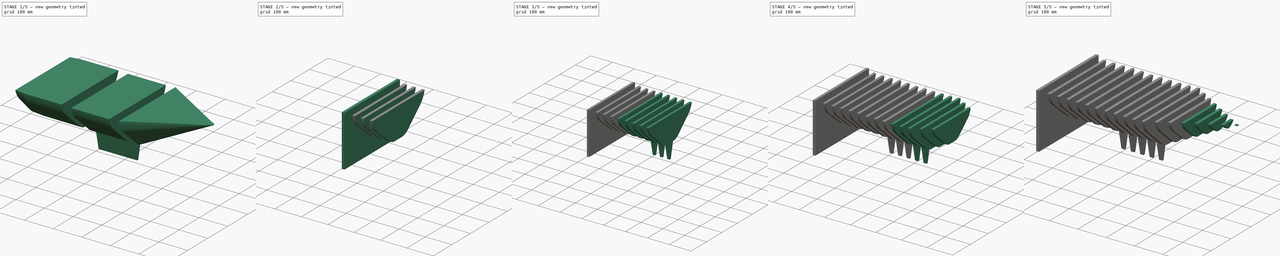
[diagram: build sequence overview — one tinted view per stage of 5, left to right]
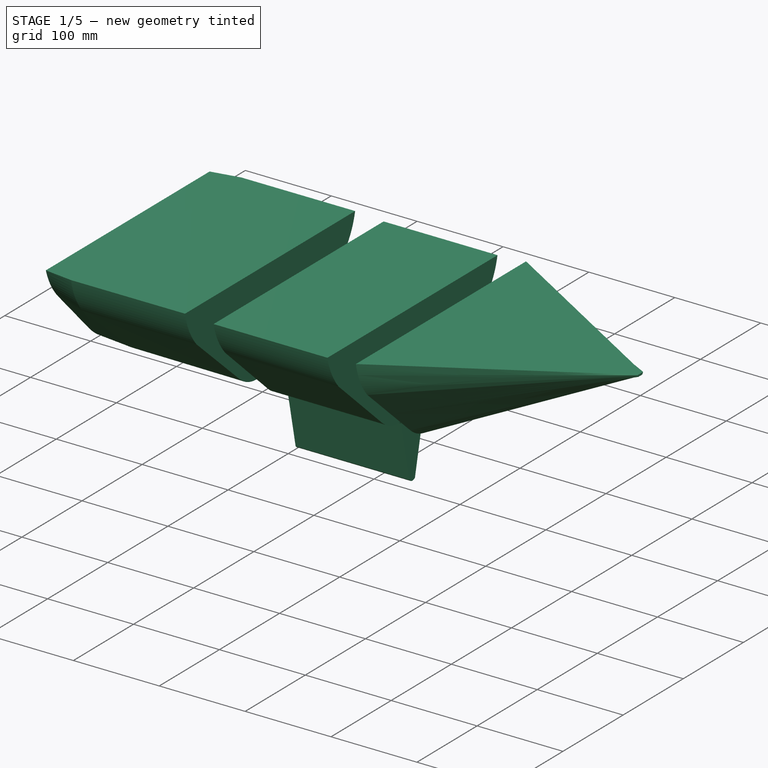
[diagram: stage 1 of 5 — iso view after this stage's code; geometry added in this stage tinted green]
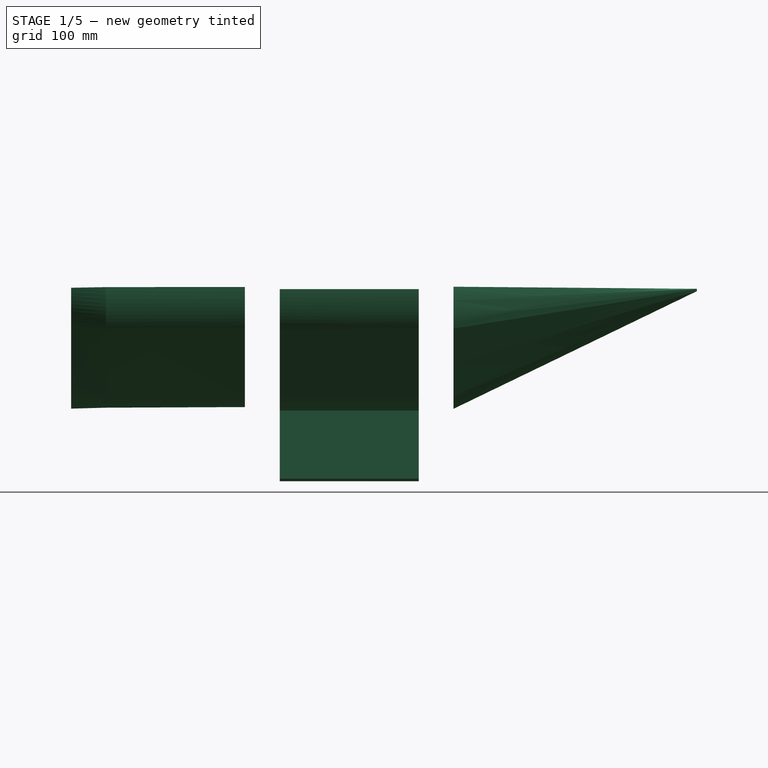
[diagram: stage 1 of 5 — front view after this stage's code; geometry added in this stage tinted green]
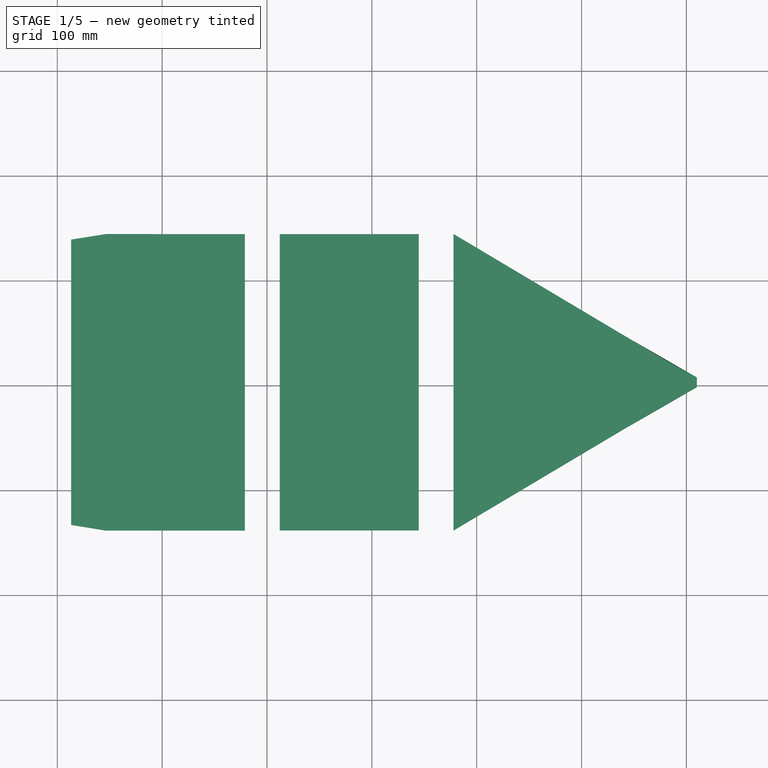
[diagram: stage 1 of 5 — top view after this stage's code; geometry added in this stage tinted green]
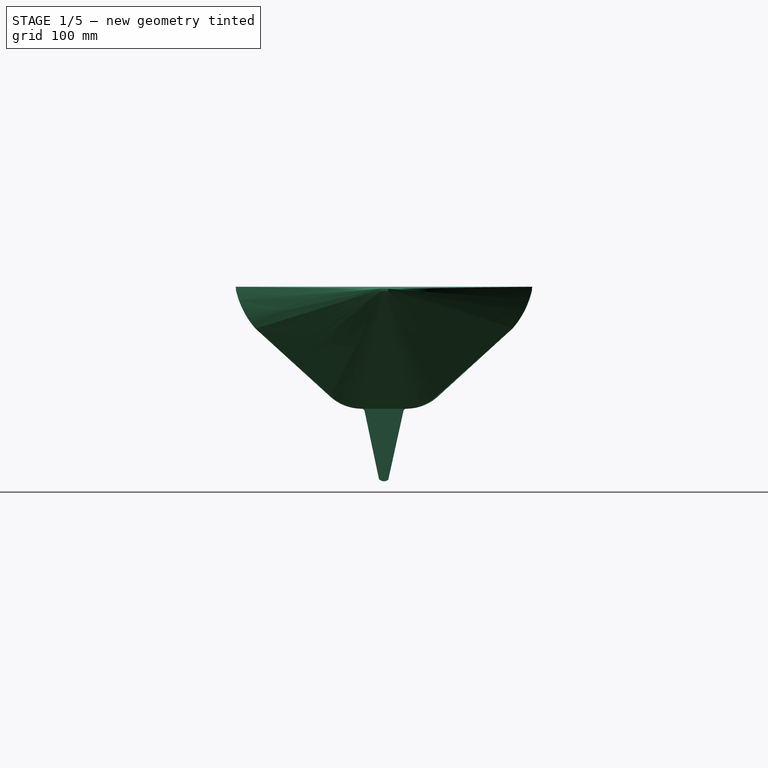
[diagram: stage 1 of 5 — right view after this stage's code; geometry added in this stage tinted green]
FCSTD DOCUMENT  (FreeCAD 0.19R24366 (Git))
Label: hulltest5
License: All rights reserved
LicenseURL: http://en.wikipedia.org/wiki/All_rights_reserved
objects: Part::FeaturePython×42, Part::Extrusion×21, Sketcher::SketchObject×9, Part::Offset2D×7, Part::Loft×4, App::DocumentObjectGroup×2, PartDesign::Pad×1, PartDesign::Body×1
note: 86 computed .brp shape members not serialized (recipe doc carries the construction recipe); baked Part::Feature solids carry a one-line shape summary decoded from their .brp

FEATURE [Sketcher::SketchObject] Sketch001  label="HullOutline"
  FullyConstrained = false
  Placement = pos=(0,0,0) rot=(0.980944,0.137386,0.137386;1.59004rad)
  sketch-geometry (9):
    g0: LineSegment StartX=0 StartY=4e-16 StartZ=0 EndX=160 EndY=3 EndZ=0
    g1: LineSegment StartX=0 StartY=4e-16 StartZ=0 EndX=-20 EndY=70 EndZ=0
    g2: LineSegment StartX=-20 StartY=70 StartZ=0 EndX=-170 EndY=70 EndZ=0
    g3: LineSegment StartX=-170 StartY=70 StartZ=0 EndX=-190 EndY=194.294 EndZ=0
    g4: LineSegment StartX=-190 StartY=194.294 StartZ=0 EndX=420 EndY=194.294 EndZ=0
    g5: LineSegment StartX=420 StartY=194.294 StartZ=0 EndX=180 EndY=70 EndZ=0
    g6: LineSegment StartX=180 StartY=70 StartZ=0 EndX=160 EndY=3 EndZ=0
    g7: LineSegment StartX=-20 StartY=70 StartZ=0 EndX=180 EndY=70 EndZ=0
    g8: GeomPoint X=0 Y=194.294 Z=0
  constraints (23):
    c: Coincident(g1,g0)
    c: Horizontal(g2)
    c: Coincident(g3,g2)
    c: Horizontal(g4)
    c: Coincident(g6,g5)
    c: Coincident(g6,g0)
    c: DistanceX(g4,g4) = 610
    c: Coincident(g3,g4)
    c: DistanceX(g3,g2) = 20
    c: DistanceX(g2,g1) = 150
    c: Coincident(g2,g1)
    c: DistanceY(g0,g1) = 70
    c: DistanceX(g0,g0) = 160
    c: DistanceX(g1,g0) = 20
    c: DistanceY(g0,g0) = 3
    c: Horizontal(g1,g5)
    c: DistanceX(g0,g5) = 20
    c: Coincident(g5,g4)
    c: Coincident(g-1,g0)
    c: Coincident(g7,g1)
    c: Coincident(g7,g5)
    c: PointOnObject(g8,g4)
    c: PointOnObject(g8,g-2)
FEATURE [Sketcher::SketchObject] Sketch
  AttachmentOffset = pos=(0,0,-220) rot=(0,0,1;0rad)
  ExternalGeometry = -> [Sketch001]
  FullyConstrained = true
  MapMode = 5
  Placement = pos=(-220,4.88e-14,-4.88e-14) rot=(0.57735,0.57735,0.57735;2.0944rad)
  Support = -> [YZ_Plane]
  sketch-geometry (4):
    g0: LineSegment StartX=-150 StartY=194.294 StartZ=0 EndX=150 EndY=194.294 EndZ=0
    g1: LineSegment StartX=150 StartY=194.294 StartZ=0 EndX=150 EndY=0 EndZ=0
    g2: LineSegment StartX=150 StartY=0 StartZ=0 EndX=-150 EndY=0 EndZ=0
    g3: LineSegment StartX=-150 StartY=0 StartZ=0 EndX=-150 EndY=194.294 EndZ=0
  constraints (12):
    c: Coincident(g0,g1)
    c: Coincident(g1,g2)
    c: Coincident(g2,g3)
    c: Coincident(g3,g0)
    c: Horizontal(g0)
    c: Horizontal(g2)
    c: Vertical(g1)
    c: Vertical(g3)
    c: Horizontal(g0,g-3)
    c: DistanceX(g0,g0) = 300
    c: DistanceX(g2,g-1) = 150
    c: Horizontal(g2,g-1)
FEATURE [PartDesign::Pad] Pad  label="BoatCoverageExtrude"
  Direction = (1,1,1)
  Length = 630
  Length2 = 100
  Placement = pos=(0,0,0) rot=(0.57735,0.57735,0.57735;2.0944rad)
  Profile = -> Sketch
  Type = 0
FEATURE [PartDesign::Body] Body
  Group = -> [Sketch,Sketch001,Pad]
  Origin = -> Origin
  Tip = -> Pad
FEATURE [Part::FeaturePython] IsoCurve  # WARN: FeaturePython — macro-defined, semantics opaque (R4)
  Face = -> Pad [Face4]
  Mode = 1
  NumberU = 0
  NumberV = 20
  Orientation = 0
  Parameter = 0
  Placement = pos=(0,0,0) rot=(0.57735,0.57735,0.57735;2.0944rad)
FEATURE [Part::Extrusion] Extrude001  label="CuttingExtrude"
  Base = -> IsoCurve
  Dir = (4e-16,1,-3e-16)
  DirMode = 2
  FaceMakerClass = Part::FaceMakerBullseye
  LengthFwd = 300
  LengthRev = 0
  Solid = false
  Symmetric = false
FEATURE [Sketcher::SketchObject] Sketch003  label="1_Back"
  FullyConstrained = false
  MapMode = 5
  Placement = pos=(-186.842,8.07e-14,-8.3e-14) rot=(0.57735,0.57735,0.57735;2.0944rad)
  Support = -> [Extrude001]
  sketch-geometry (10):
    g0: LineSegment StartX=66.5095 StartY=98.0101 StartZ=0 EndX=118.159 EndY=151.003 EndZ=0
    g1: ArcOfCircle CenterX=57.9456 CenterY=209.691 CenterZ=0 NormalX=0 NormalY=0 NormalZ=1 AngleXU=0 Radius=84.0828 StartAngle=5.51062 EndAngle=6.06309
    g2: LineSegment StartX=140 StartY=191.333 StartZ=0 EndX=0 EndY=191.333 EndZ=0
    g3: ArcOfCircle CenterX=0.209863 CenterY=162.629 CenterZ=0 NormalX=0 NormalY=0 NormalZ=1 AngleXU=0 Radius=92.5812 StartAngle=4.71239 EndAngle=5.51062
    g4: LineSegment StartX=0.209863 StartY=70.048 StartZ=0 EndX=0 EndY=70.048 EndZ=0
    g5: LineSegment StartX=-66.7966 StartY=98.3059 StartZ=0 EndX=-117.703 EndY=151.003 EndZ=0
    g6: ArcOfCircle CenterX=-53.9728 CenterY=212.567 CenterZ=0 NormalX=0 NormalY=0 NormalZ=1 AngleXU=0 Radius=88.6089 StartAngle=3.38358 EndAngle=3.9097
    g7: LineSegment StartX=-140 StartY=191.333 StartZ=0 EndX=0 EndY=191.333 EndZ=0
    g8: ArcOfCircle CenterX=-0.209863 CenterY=162.629 CenterZ=0 NormalX=0 NormalY=0 NormalZ=1 AngleXU=0 Radius=92.5812 StartAngle=3.9097 EndAngle=4.71239
    g9: LineSegment StartX=-0.209863 StartY=70.048 StartZ=0 EndX=0 EndY=70.048 EndZ=0
  constraints (21):
    c: Coincident(g2,g1)
    c: Horizontal(g2)
    c: Tangent(g3,g0) = -1.5708
    c: Horizontal(g4)
    c: Tangent(g4,g3) = 1.5708
    c: Coincident(g7,g6)
    c: PointOnObject(g7,g-2)
    c: Horizontal(g7)
    c: DistanceX(g7,g7) = 140
    c: Tangent(g8,g5) = 1.5708
    c: PointOnObject(g9,g-2)
    c: Horizontal(g9)
    c: Tangent(g9,g8) = -1.5708
    c: DistanceX(g2,g2) = 140
    c: Coincident(g9,g4)
    c: Coincident(g2,g7)
    c: Tangent(g6,g5) = 1.5708
    c: Tangent(g1,g0) = -1.5708
    c: Horizontal(g0,g5)
    c: Equal(g4,g9)
    c: Horizontal(g8,g3)
FEATURE [Sketcher::SketchObject] Sketch004  label="4_BackKeel"
  FullyConstrained = false
  MapMode = 5
  Placement = pos=(12.1053,-5.2e-15,5.4e-15) rot=(0.57735,0.57735,0.57735;2.0944rad)
  Support = -> [Extrude001]
  sketch-geometry (11):
    g0: LineSegment StartX=53.3739 StartY=82.3397 StartZ=0 EndX=124.907 EndY=147.492 EndZ=0
    g1: ArcOfCircle CenterX=59.5795 CenterY=204.375 CenterZ=0 NormalX=0 NormalY=0 NormalZ=1 AngleXU=0 Radius=86.6215 StartAngle=5.56677 EndAngle=6.11647
    g2: LineSegment StartX=145 StartY=190 StartZ=0 EndX=0 EndY=190 EndZ=0
    g3: ArcOfCircle CenterX=21.5004 CenterY=117.335 CenterZ=0 NormalX=0 NormalY=0 NormalZ=1 AngleXU=0 Radius=47.3348 StartAngle=4.71125 EndAngle=5.45114
    g4: LineSegment StartX=-53.2196 StartY=82.4014 StartZ=0 EndX=-123.484 EndY=146.649 EndZ=0
    g5: ArcOfCircle CenterX=-60.6804 CenterY=204.834 CenterZ=0 NormalX=0 NormalY=0 NormalZ=1 AngleXU=0 Radius=85.6144 StartAngle=3.31574 EndAngle=3.88884
    g6: LineSegment StartX=-145 StartY=190 StartZ=0 EndX=0 EndY=190 EndZ=0
    g7: ArcOfCircle CenterX=-21.2781 CenterY=117.335 CenterZ=0 NormalX=0 NormalY=0 NormalZ=1 AngleXU=0 Radius=47.3348 StartAngle=3.9717 EndAngle=4.7089
    g8: ArcOfCircle CenterX=0 CenterY=9.97374 CenterZ=0 NormalX=0 NormalY=0 NormalZ=1 AngleXU=0 Radius=9.1531 StartAngle=3.72605 EndAngle=5.55542
    g9: LineSegment StartX=-21.4432 StartY=70 StartZ=0 EndX=-7.6338 EndY=4.92355 EndZ=0
    g10: LineSegment StartX=6.83427 StartY=3.88506 StartZ=0 EndX=21.4466 EndY=70 EndZ=0
  constraints (21):
    c: Coincident(g1,g0)
    c: Coincident(g2,g1)
    c: Horizontal(g2)
    c: Tangent(g3,g0) = -1.5708
    c: Coincident(g5,g4)
    c: Coincident(g6,g5)
    c: PointOnObject(g6,g-2)
    c: Horizontal(g6)
    c: DistanceX(g6,g6) = 145
    c: Tangent(g7,g4) = 1.5708
    c: DistanceX(g2,g2) = 145
    c: DistanceY(g7,g2) = 120
    c: Horizontal(g3,g7)
    c: DistanceY(g-1,g7) = 70
    c: PointOnObject(g8,g-2)
    c: Coincident(g9,g7)
    c: Coincident(g9,g8)
    c: Coincident(g10,g8)
    c: Coincident(g10,g3)
    c: Coincident(g6,g2)
    c: Equal(g3,g7)
FEATURE [Sketcher::SketchObject] Sketch006  label="7_Front"
  FullyConstrained = false
  MapMode = 5
  Placement = pos=(410,-1.77e-13,1.821e-13) rot=(0.57735,0.57735,0.57735;2.0944rad)
  Support = -> [Extrude001]
  sketch-geometry (8):
    g0: LineSegment StartX=6.00585 StartY=183.663 StartZ=0 EndX=10 EndY=190.33 EndZ=0
    g1: LineSegment StartX=10 StartY=190.33 StartZ=0 EndX=0 EndY=190.33 EndZ=0
    g2: ArcOfCircle CenterX=3.21499 CenterY=185.335 CenterZ=0 NormalX=0 NormalY=0 NormalZ=1 AngleXU=0 Radius=3.25339 StartAngle=4.71239 EndAngle=5.74342
    g3: LineSegment StartX=3.21499 StartY=182.081 StartZ=0 EndX=0 EndY=182.081 EndZ=0
    g4: LineSegment StartX=-6.00585 StartY=183.663 StartZ=0 EndX=-10 EndY=190.33 EndZ=0
    g5: LineSegment StartX=-10 StartY=190.33 StartZ=0 EndX=0 EndY=190.33 EndZ=0
    g6: ArcOfCircle CenterX=-3.21499 CenterY=185.335 CenterZ=0 NormalX=0 NormalY=0 NormalZ=1 AngleXU=0 Radius=3.25339 StartAngle=3.68135 EndAngle=4.71239
    g7: LineSegment StartX=-3.21499 StartY=182.081 StartZ=0 EndX=0 EndY=182.081 EndZ=0
  constraints (18):
    c: Horizontal(g1)
    c: Tangent(g2,g0) = -1.5708
    c: Horizontal(g3)
    c: Tangent(g3,g2) = 1.5708
    c: PointOnObject(g5,g-2)
    c: Horizontal(g5)
    c: DistanceX(g5,g5) = 10
    c: Tangent(g6,g4) = 1.5708
    c: PointOnObject(g7,g-2)
    c: Horizontal(g7)
    c: Tangent(g7,g6) = -1.5708
    c: DistanceX(g1,g1) = 10
    c: Coincident(g5,g1)
    c: Coincident(g3,g7)
    c: Equal(g3,g7)
    c: Coincident(g1,g0)
    c: Coincident(g5,g4)
    c: Horizontal(g0,g4)
FEATURE [Sketcher::SketchObject] Sketch007  label="3_BackBeforeKeel"
  FullyConstrained = false
  MapMode = 5
  Placement = pos=(-21.0526,9.1e-15,-9.3e-15) rot=(0.57735,0.57735,0.57735;2.0944rad)
  Support = -> [Extrude001]
  sketch-geometry (10):
    g0: LineSegment StartX=53.2119 StartY=83.6872 StartZ=0 EndX=119.892 EndY=144.849 EndZ=0
    g1: ArcOfCircle CenterX=62.7354 CenterY=205.525 CenterZ=0 NormalX=0 NormalY=0 NormalZ=1 AngleXU=0 Radius=83.3575 StartAngle=5.46793 EndAngle=6.12108
    g2: LineSegment StartX=145 StartY=192.071 StartZ=0 EndX=0 EndY=192.071 EndZ=0
    g3: ArcOfCircle CenterX=21.9981 CenterY=117.717 CenterZ=0 NormalX=0 NormalY=0 NormalZ=1 AngleXU=0 Radius=46.1772 StartAngle=4.71239 EndAngle=5.45465
    g4: LineSegment StartX=21.9981 StartY=71.5399 StartZ=0 EndX=0 EndY=71.5399 EndZ=0
    g5: LineSegment StartX=-52.4733 StartY=83.1594 StartZ=0 EndX=-124.483 EndY=147.411 EndZ=0
    g6: ArcOfCircle CenterX=-59.6005 CenterY=204.261 CenterZ=0 NormalX=0 NormalY=0 NormalZ=1 AngleXU=0 Radius=86.2651 StartAngle=3.28337 EndAngle=3.8611
    g7: LineSegment StartX=-145 StartY=192.071 StartZ=0 EndX=0 EndY=192.071 EndZ=0
    g8: ArcOfCircle CenterX=-21.9981 CenterY=117.314 CenterZ=0 NormalX=0 NormalY=0 NormalZ=1 AngleXU=0 Radius=45.7743 StartAngle=3.98386 EndAngle=4.71239
    g9: LineSegment StartX=-21.9981 StartY=71.5399 StartZ=0 EndX=0 EndY=71.5399 EndZ=0
  constraints (19):
    c: Coincident(g1,g0)
    c: Coincident(g2,g1)
    c: Horizontal(g2)
    c: Tangent(g3,g0) = -1.5708
    c: Horizontal(g4)
    c: Tangent(g4,g3) = 1.5708
    c: Coincident(g6,g5)
    c: Coincident(g7,g6)
    c: PointOnObject(g7,g-2)
    c: Horizontal(g7)
    c: DistanceX(g7,g7) = 145
    c: Tangent(g8,g5) = 1.5708
    c: PointOnObject(g9,g-2)
    c: Horizontal(g9)
    c: Tangent(g9,g8) = -1.5708
    c: DistanceX(g2,g2) = 145
    c: Coincident(g2,g7)
    c: Coincident(g9,g4)
    c: Equal(g9,g4)
FEATURE [Sketcher::SketchObject] Sketch008  label="2_BackHull"
  FullyConstrained = false
  MapMode = 5
  Placement = pos=(-153.684,6.64e-14,-6.82e-14) rot=(0.57735,0.57735,0.57735;2.0944rad)
  Support = -> [Extrude001]
  sketch-geometry (10):
    g0: LineSegment StartX=49.8417 StartY=83.4936 StartZ=0 EndX=121.829 EndY=145.753 EndZ=0
    g1: ArcOfCircle CenterX=61.5152 CenterY=204.916 CenterZ=0 NormalX=0 NormalY=0 NormalZ=1 AngleXU=0 Radius=84.4872 StartAngle=5.50741 EndAngle=6.12899
    g2: LineSegment StartX=145 StartY=191.94 StartZ=0 EndX=0 EndY=191.94 EndZ=0
    g3: ArcOfCircle CenterX=16.1616 CenterY=122.436 CenterZ=0 NormalX=0 NormalY=0 NormalZ=1 AngleXU=0 Radius=51.4867 StartAngle=4.71239 EndAngle=5.42545
    g4: LineSegment StartX=16.1616 StartY=70.9495 StartZ=0 EndX=0 EndY=70.9495 EndZ=0
    g5: LineSegment StartX=-49.3155 StartY=82.1102 StartZ=0 EndX=-124.6 EndY=147.145 EndZ=0
    g6: ArcOfCircle CenterX=-59.4871 CenterY=203.841 CenterZ=0 NormalX=0 NormalY=0 NormalZ=1 AngleXU=0 Radius=86.3371 StartAngle=3.27987 EndAngle=3.858
    g7: LineSegment StartX=-145 StartY=191.94 StartZ=0 EndX=0 EndY=191.94 EndZ=0
    g8: ArcOfCircle CenterX=-19.3232 CenterY=116.829 CenterZ=0 NormalX=0 NormalY=0 NormalZ=1 AngleXU=0 Radius=45.8796 StartAngle=3.9999 EndAngle=4.71239
    g9: LineSegment StartX=-19.3232 StartY=70.9495 StartZ=0 EndX=0 EndY=70.9495 EndZ=0
  constraints (18):
    c: Coincident(g1,g0)
    c: Coincident(g2,g1)
    c: Horizontal(g2)
    c: Tangent(g3,g0) = -1.5708
    c: Horizontal(g4)
    c: Tangent(g4,g3) = 1.5708
    c: Coincident(g6,g5)
    c: Coincident(g7,g6)
    c: PointOnObject(g7,g-2)
    c: Horizontal(g7)
    c: DistanceX(g7,g7) = 145
    c: Tangent(g8,g5) = 1.5708
    c: PointOnObject(g9,g-2)
    c: Horizontal(g9)
    c: Tangent(g9,g8) = -1.5708
    c: DistanceX(g2,g2) = 145
    c: Coincident(g2,g7)
    c: Coincident(g4,g9)
FEATURE [Sketcher::SketchObject] Sketch009  label="5_FrontKeel"
  FullyConstrained = false
  MapMode = 5
  Placement = pos=(144.737,-6.25e-14,6.43e-14) rot=(0.57735,0.57735,0.57735;2.0944rad)
  Support = -> [Extrude001]
  sketch-geometry (11):
    g0: LineSegment StartX=53.3739 StartY=82.3197 StartZ=0 EndX=124.906 EndY=147.492 EndZ=0
    g1: ArcOfCircle CenterX=59.5786 CenterY=204.376 CenterZ=0 NormalX=0 NormalY=0 NormalZ=1 AngleXU=0 Radius=86.6226 StartAngle=5.56677 EndAngle=6.11646
    g2: LineSegment StartX=145 StartY=190 StartZ=0 EndX=0 EndY=190 EndZ=0
    g3: ArcOfCircle CenterX=21.5589 CenterY=117.24 CenterZ=0 NormalX=0 NormalY=0 NormalZ=1 AngleXU=0 Radius=47.2398 StartAngle=4.71001 EndAngle=5.45129
    g4: LineSegment StartX=-53.3337 StartY=82.3074 StartZ=0 EndX=-124.895 EndY=147.44 EndZ=0
    g5: ArcOfCircle CenterX=-59.6135 CenterY=204.307 CenterZ=0 NormalX=0 NormalY=0 NormalZ=1 AngleXU=0 Radius=86.5768 StartAngle=3.30761 EndAngle=3.85822
    g6: LineSegment StartX=-145 StartY=190 StartZ=0 EndX=0 EndY=190 EndZ=0
    g7: ArcOfCircle CenterX=-21.5269 CenterY=117.254 CenterZ=0 NormalX=0 NormalY=0 NormalZ=1 AngleXU=0 Radius=47.2536 StartAngle=3.97399 EndAngle=4.71417
    g8: ArcOfCircle CenterX=0 CenterY=9.86826 CenterZ=0 NormalX=0 NormalY=0 NormalZ=1 AngleXU=0 Radius=9.11057 StartAngle=3.7165 EndAngle=5.56398
    g9: LineSegment StartX=-21.4429 StartY=70 StartZ=0 EndX=-7.64601 EndY=4.91436 EndZ=0
    g10: LineSegment StartX=6.85416 StartY=3.86634 StartZ=0 EndX=21.4466 EndY=70 EndZ=0
  constraints (20):
    c: Coincident(g1,g0)
    c: Coincident(g2,g1)
    c: Horizontal(g2)
    c: Tangent(g3,g0) = -1.5708
    c: Coincident(g5,g4)
    c: Coincident(g6,g5)
    c: PointOnObject(g6,g-2)
    c: Horizontal(g6)
    c: DistanceX(g6,g6) = 145
    c: Tangent(g7,g4) = 1.5708
    c: DistanceX(g2,g2) = 145
    c: DistanceY(g7,g2) = 120
    c: Horizontal(g3,g7)
    c: DistanceY(g-1,g7) = 70
    c: PointOnObject(g8,g-2)
    c: Coincident(g9,g7)
    c: Coincident(g9,g8)
    c: Coincident(g10,g8)
    c: Coincident(g10,g3)
    c: Coincident(g6,g2)
FEATURE [Sketcher::SketchObject] Sketch010  label="6_FrontBeforeKeel"
  FullyConstrained = false
  MapMode = 5
  Placement = pos=(177.895,-7.68e-14,7.9e-14) rot=(0.57735,0.57735,0.57735;2.0944rad)
  Support = -> [Extrude001]
  sketch-geometry (10):
    g0: LineSegment StartX=51.504 StartY=81.9846 StartZ=0 EndX=124.983 EndY=147.77 EndZ=0
    g1: ArcOfCircle CenterX=59.1483 CenterY=204.124 CenterZ=0 NormalX=0 NormalY=0 NormalZ=1 AngleXU=0 Radius=86.6608 StartAngle=5.57522 EndAngle=6.14643
    g2: LineSegment StartX=145 StartY=192.31 StartZ=0 EndX=0 EndY=192.31 EndZ=0
    g3: ArcOfCircle CenterX=19.8212 CenterY=117.373 CenterZ=0 NormalX=0 NormalY=0 NormalZ=1 AngleXU=0 Radius=47.4988 StartAngle=4.71239 EndAngle=5.4426
    g4: LineSegment StartX=19.8212 StartY=69.8741 StartZ=0 EndX=0 EndY=69.8741 EndZ=0
    g5: LineSegment StartX=-52.616 StartY=82.4915 StartZ=0 EndX=-124.474 EndY=147.392 EndZ=0
    g6: ArcOfCircle CenterX=-59.5618 CenterY=204.203 CenterZ=0 NormalX=0 NormalY=0 NormalZ=1 AngleXU=0 Radius=86.2619 StartAngle=3.2799 EndAngle=3.86053
    g7: LineSegment StartX=-145 StartY=192.31 StartZ=0 EndX=0 EndY=192.31 EndZ=0
    g8: ArcOfCircle CenterX=-19.8212 CenterY=118.802 CenterZ=0 NormalX=0 NormalY=0 NormalZ=1 AngleXU=0 Radius=48.9283 StartAngle=3.97783 EndAngle=4.71239
    g9: LineSegment StartX=-19.8212 StartY=69.8741 StartZ=0 EndX=0 EndY=69.8741 EndZ=0
  constraints (19):
    c: Coincident(g1,g0)
    c: Coincident(g2,g1)
    c: Horizontal(g2)
    c: Tangent(g3,g0) = -1.5708
    c: Horizontal(g4)
    c: Tangent(g4,g3) = 1.5708
    c: Coincident(g6,g5)
    c: Coincident(g7,g6)
    c: PointOnObject(g7,g-2)
    c: Horizontal(g7)
    c: DistanceX(g7,g7) = 145
    c: Tangent(g8,g5) = 1.5708
    c: PointOnObject(g9,g-2)
    c: Horizontal(g9)
    c: Tangent(g9,g8) = -1.5708
    c: DistanceX(g2,g2) = 145
    c: Coincident(g2,g7)
    c: Coincident(g4,g9)
    c: Equal(g4,g9)
FEATURE [Part::Offset2D] Offset2D  label="1_Back_Offset2D"
  Fill = false
  Intersection = false
  Join = 0
  Mode = 1
  SelfIntersection = false
  Source = -> Sketch003
  Value = -3
FEATURE [Part::Offset2D] Offset2D001  label="2_BackHull_Offset2D"
  Fill = false
  Intersection = false
  Join = 0
  Mode = 1
  SelfIntersection = false
  Source = -> Sketch008
  Value = -3
FEATURE [Part::Offset2D] Offset2D002  label="6_FrontBeforeKeel_Offset2D"
  Fill = false
  Intersection = false
  Join = 0
  Mode = 1
  SelfIntersection = false
  Source = -> Sketch010
  Value = -3
FEATURE [Part::Offset2D] Offset2D003  label="3_BackBeforeKeel_Offset2D"
  Fill = false
  Intersection = false
  Join = 0
  Mode = 1
  SelfIntersection = false
  Source = -> Sketch007
  Value = -3
FEATURE [Part::Offset2D] Offset2D004  label="4_BackKeel_Offset2D"
  Fill = false
  Intersection = false
  Join = 0
  Mode = 1
  SelfIntersection = false
  Source = -> Sketch004
  Value = -3
FEATURE [Part::Offset2D] Offset2D005  label="5_FrontKeel_Offset2D"
  Fill = false
  Intersection = false
  Join = 0
  Mode = 1
  SelfIntersection = false
  Source = -> Sketch009
  Value = -3
FEATURE [Part::Offset2D] Offset2D006  label="7_Front_Offset2D"
  Fill = false
  Intersection = false
  Join = 0
  Mode = 1
  SelfIntersection = false
  Source = -> Sketch006
  Value = -3
FEATURE [Part::Loft] Loft
  Closed = false
  MaxDegree = 5
  Ruled = false
  Sections = -> [Offset2D002,Offset2D006]
  Solid = true
FEATURE [Part::Loft] Loft001
  Closed = false
  MaxDegree = 5
  Ruled = false
  Sections = -> [Offset2D004,Offset2D005]
  Solid = true
FEATURE [Part::Loft] Loft002
  Closed = false
  MaxDegree = 5
  Ruled = false
  Sections = -> [Offset2D001,Offset2D003]
  Solid = true
FEATURE [Part::Loft] Loft003
  Closed = false
  MaxDegree = 5
  Ruled = false
  Sections = -> [Offset2D,Offset2D001]
  Solid = true
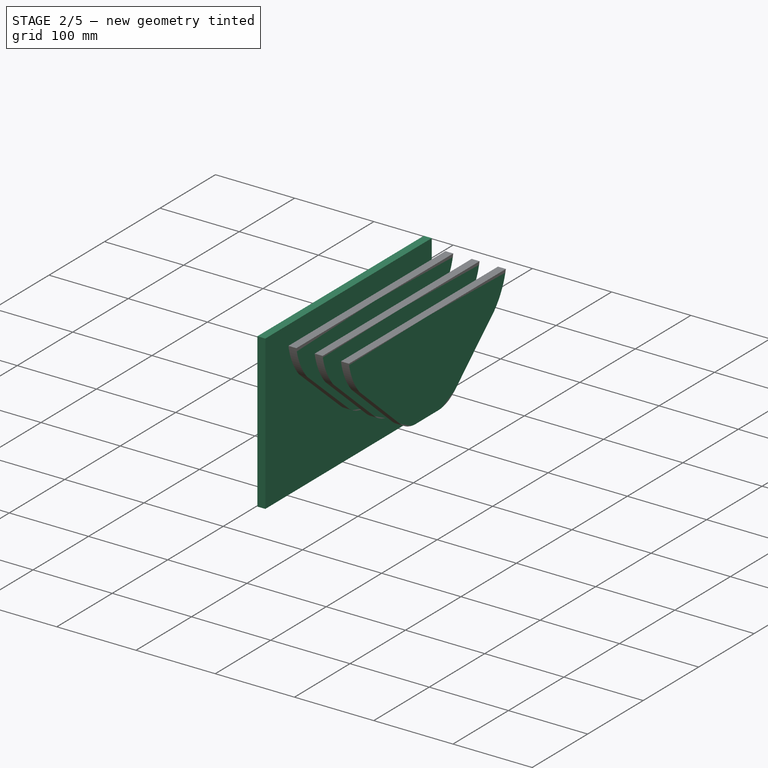
[diagram: stage 2 of 5 — iso view after this stage's code; geometry added in this stage tinted green]
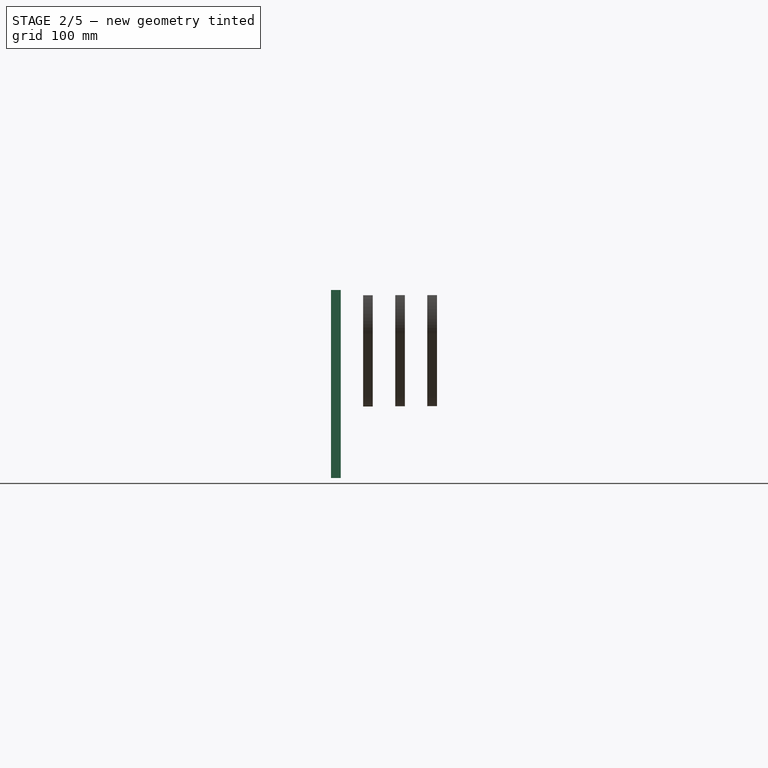
[diagram: stage 2 of 5 — front view after this stage's code; geometry added in this stage tinted green]
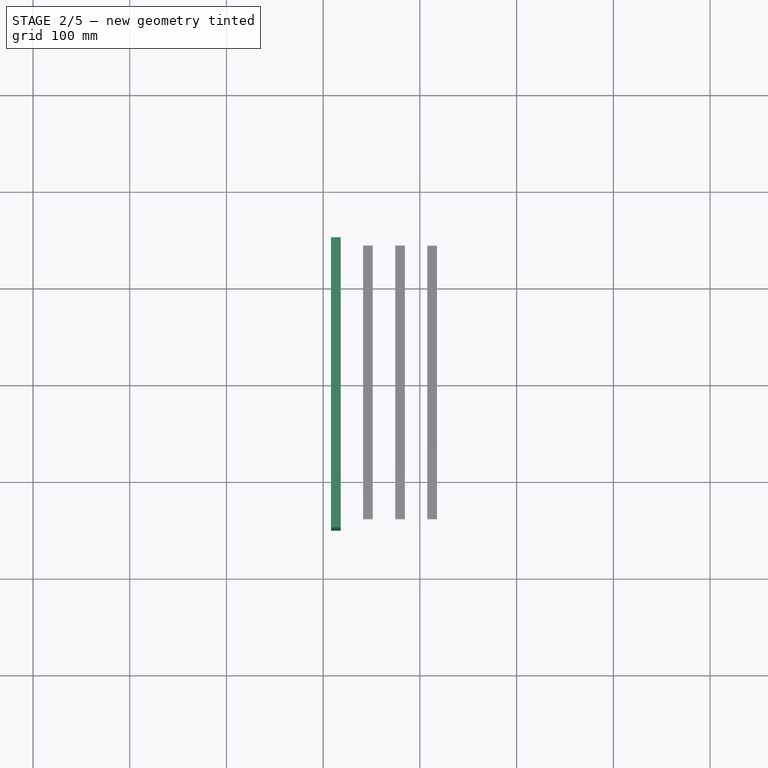
[diagram: stage 2 of 5 — top view after this stage's code; geometry added in this stage tinted green]
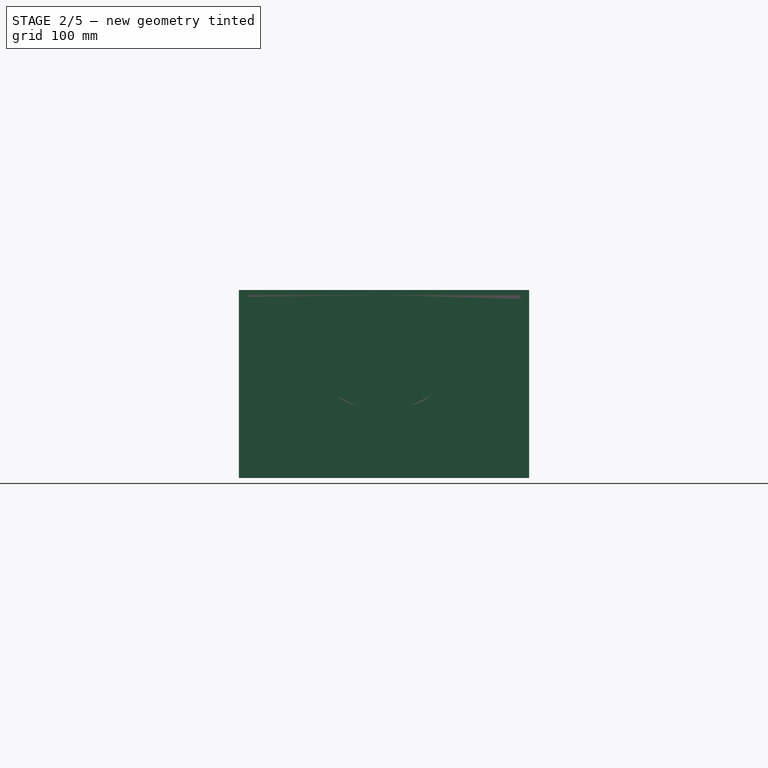
[diagram: stage 2 of 5 — right view after this stage's code; geometry added in this stage tinted green]
FEATURE [Part::Extrusion] Extrude016
  Base = -> Slice_child31
  Dir = (1,0,0)
  DirMode = 0
  FaceMakerClass = Part::FaceMakerBullseye
  LengthFwd = 10
  LengthRev = 0
  Solid = false
  Symmetric = true
FEATURE [Part::Extrusion] Extrude017
  Base = -> Slice_child33
  Dir = (1,0,0)
  DirMode = 0
  FaceMakerClass = Part::FaceMakerBullseye
  LengthFwd = 10
  LengthRev = 0
  Solid = false
  Symmetric = true
FEATURE [Part::Extrusion] Extrude018
  Base = -> Slice_child35
  Dir = (1,0,0)
  DirMode = 0
  FaceMakerClass = Part::FaceMakerBullseye
  LengthFwd = 10
  LengthRev = 0
  Solid = false
  Symmetric = true
FEATURE [Part::Extrusion] Extrude019
  Base = -> Slice_child36
  Dir = (1,0,0)
  DirMode = 0
  FaceMakerClass = Part::FaceMakerBullseye
  LengthFwd = 10
  LengthRev = 0
  Solid = false
  Symmetric = true
FEATURE [Part::Extrusion] Extrude020
  Base = -> Slice_child38
  Dir = (1,0,0)
  DirMode = 0
  FaceMakerClass = Part::FaceMakerBullseye
  LengthFwd = 10
  LengthRev = 0
  Solid = false
  Symmetric = true
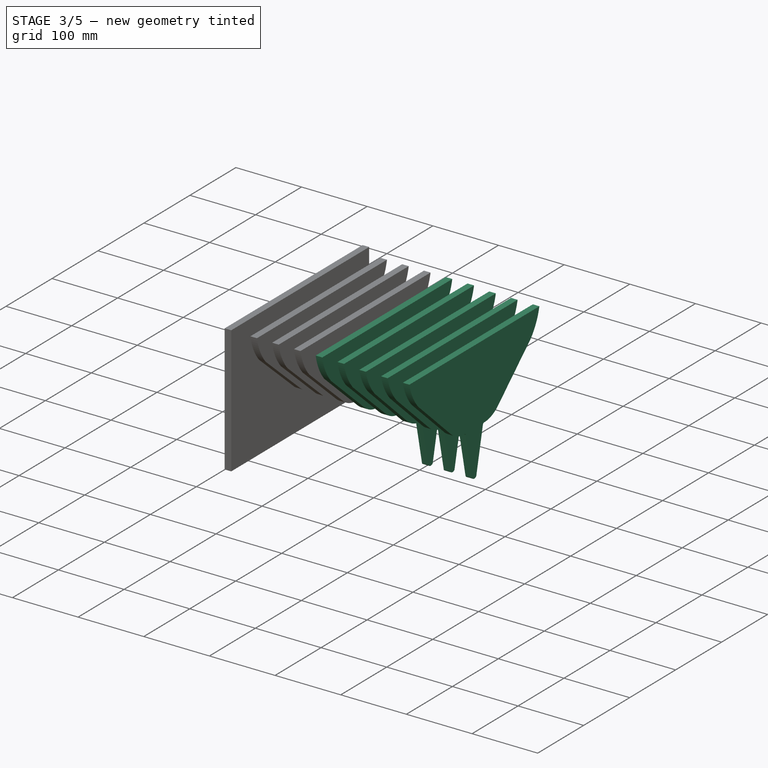
[diagram: stage 3 of 5 — iso view after this stage's code; geometry added in this stage tinted green]
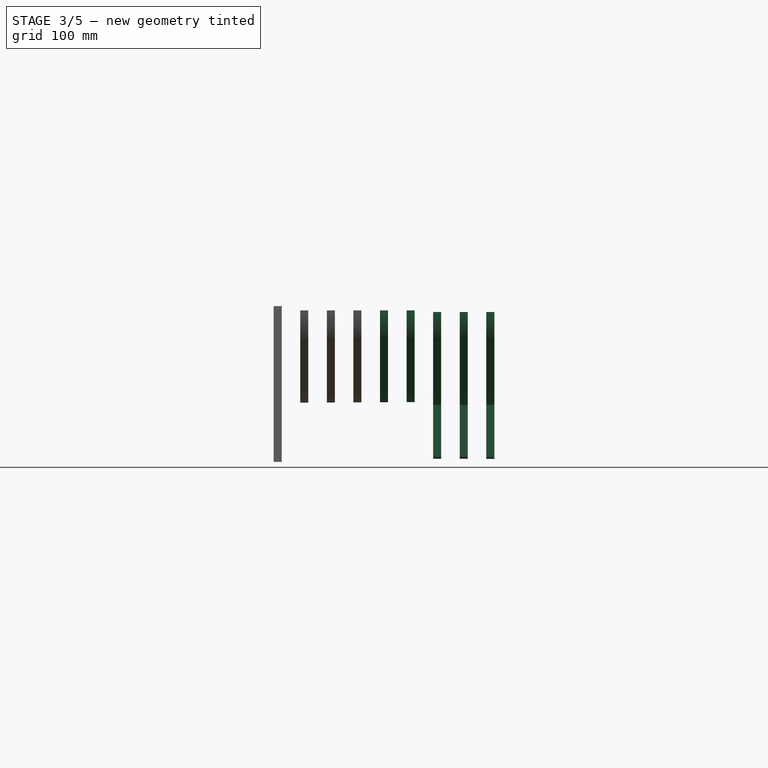
[diagram: stage 3 of 5 — front view after this stage's code; geometry added in this stage tinted green]
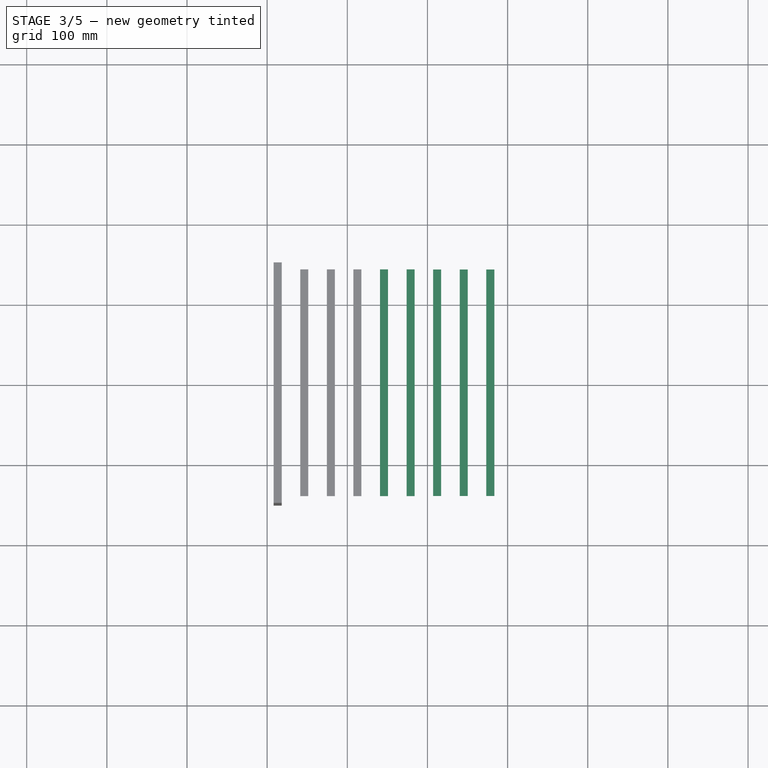
[diagram: stage 3 of 5 — top view after this stage's code; geometry added in this stage tinted green]
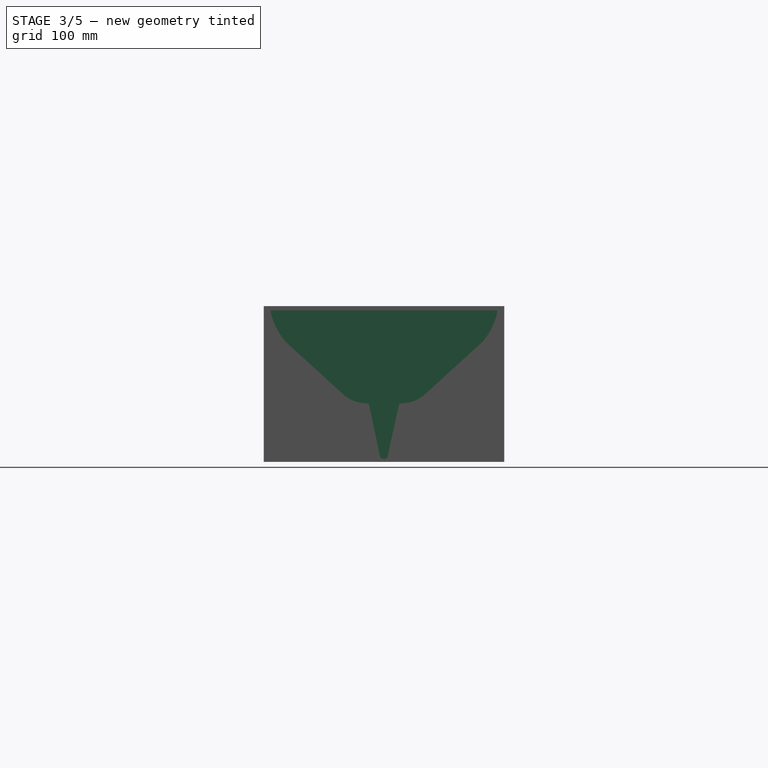
[diagram: stage 3 of 5 — right view after this stage's code; geometry added in this stage tinted green]
FEATURE [Part::Extrusion] Extrude011
  Base = -> Slice_child21
  Dir = (1,0,0)
  DirMode = 0
  FaceMakerClass = Part::FaceMakerBullseye
  LengthFwd = 10
  LengthRev = 0
  Solid = false
  Symmetric = true
FEATURE [Part::Extrusion] Extrude012
  Base = -> Slice_child23
  Dir = (1,0,0)
  DirMode = 0
  FaceMakerClass = Part::FaceMakerBullseye
  LengthFwd = 10
  LengthRev = 0
  Solid = false
  Symmetric = true
FEATURE [Part::Extrusion] Extrude013
  Base = -> Slice_child25
  Dir = (1,0,0)
  DirMode = 0
  FaceMakerClass = Part::FaceMakerBullseye
  LengthFwd = 10
  LengthRev = 0
  Solid = false
  Symmetric = true
FEATURE [Part::Extrusion] Extrude014
  Base = -> Slice_child27
  Dir = (1,0,0)
  DirMode = 0
  FaceMakerClass = Part::FaceMakerBullseye
  LengthFwd = 10
  LengthRev = 0
  Solid = false
  Symmetric = true
FEATURE [Part::Extrusion] Extrude015
  Base = -> Slice_child29
  Dir = (1,0,0)
  DirMode = 0
  FaceMakerClass = Part::FaceMakerBullseye
  LengthFwd = 10
  LengthRev = 0
  Solid = false
  Symmetric = true
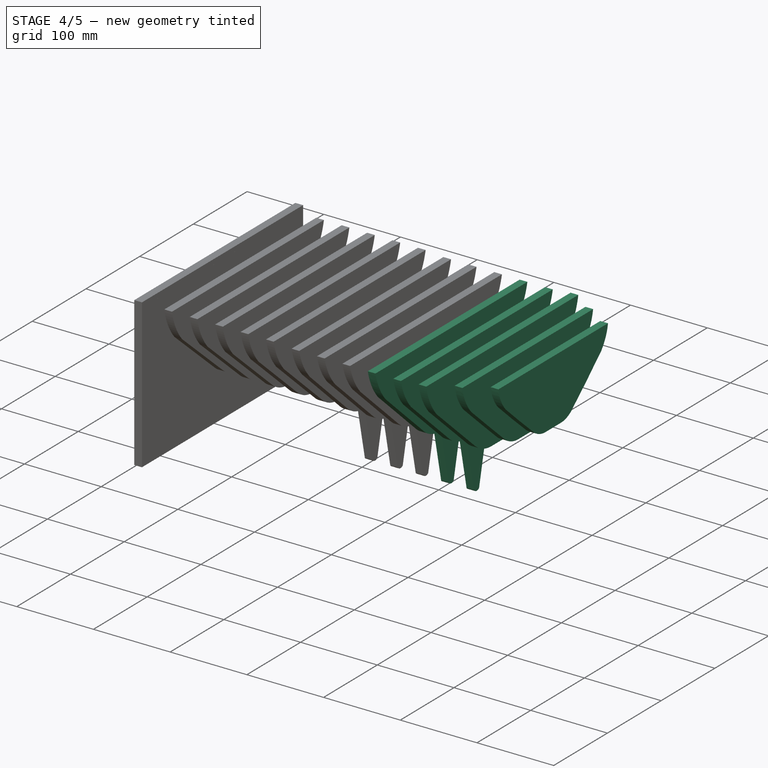
[diagram: stage 4 of 5 — iso view after this stage's code; geometry added in this stage tinted green]
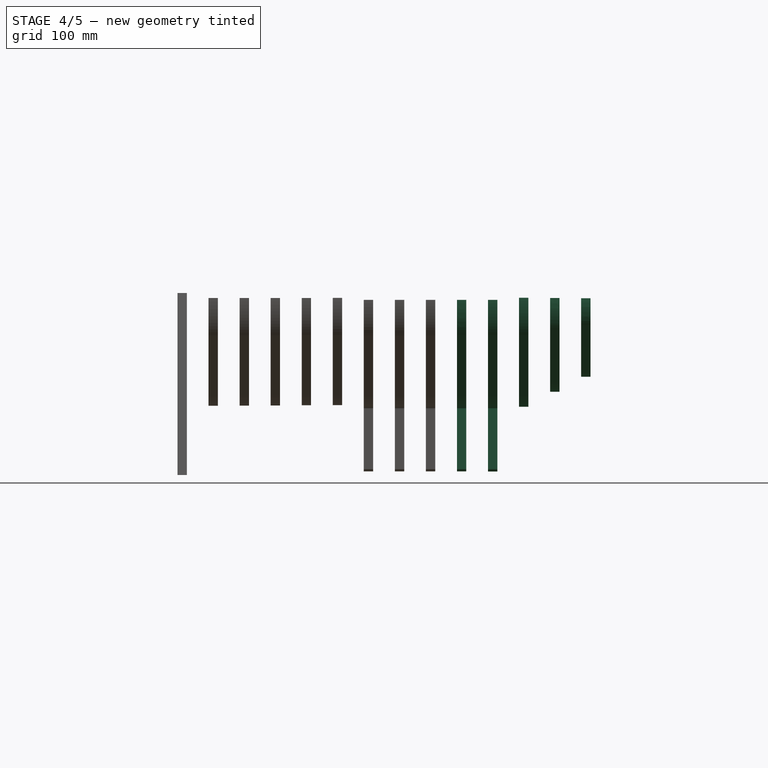
[diagram: stage 4 of 5 — front view after this stage's code; geometry added in this stage tinted green]
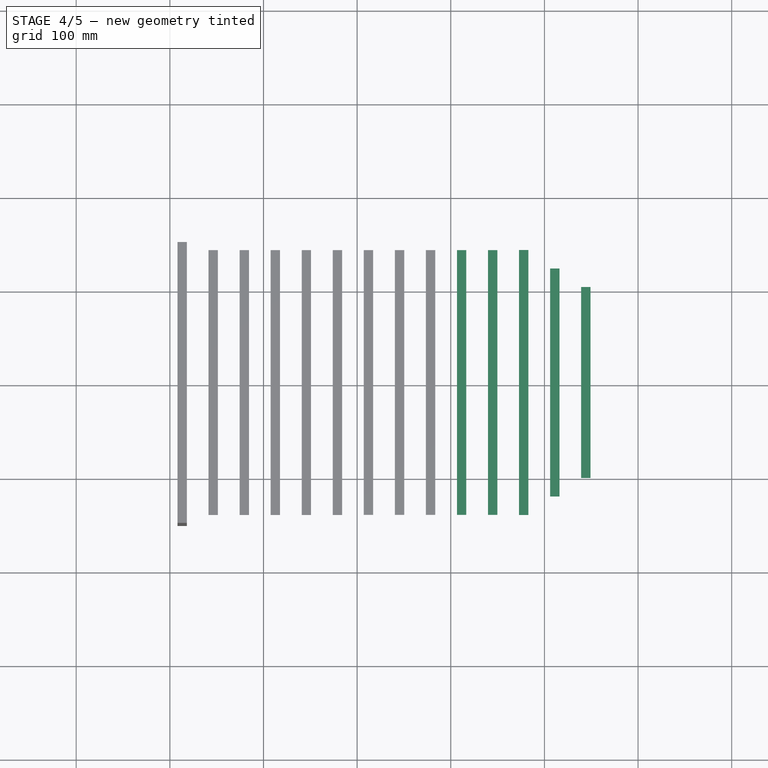
[diagram: stage 4 of 5 — top view after this stage's code; geometry added in this stage tinted green]
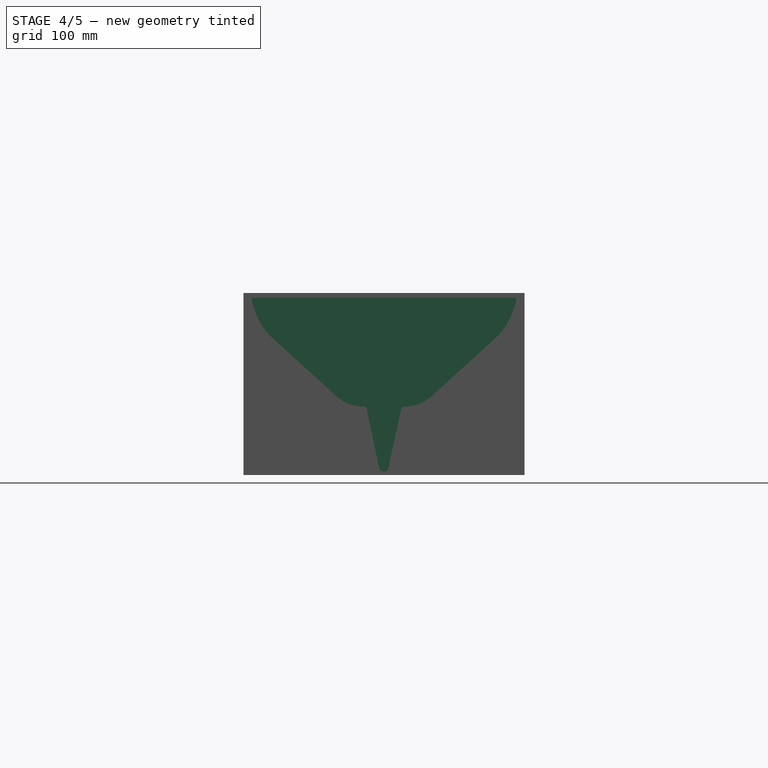
[diagram: stage 4 of 5 — right view after this stage's code; geometry added in this stage tinted green]
FEATURE [Part::Extrusion] Extrude006
  Base = -> Slice_child11
  Dir = (1,0,0)
  DirMode = 0
  FaceMakerClass = Part::FaceMakerBullseye
  LengthFwd = 10
  LengthRev = 0
  Solid = false
  Symmetric = true
FEATURE [Part::Extrusion] Extrude007
  Base = -> Slice_child13
  Dir = (1,0,0)
  DirMode = 0
  FaceMakerClass = Part::FaceMakerBullseye
  LengthFwd = 10
  LengthRev = 0
  Solid = false
  Symmetric = true
FEATURE [Part::Extrusion] Extrude008
  Base = -> Slice_child15
  Dir = (1,0,0)
  DirMode = 0
  FaceMakerClass = Part::FaceMakerBullseye
  LengthFwd = 10
  LengthRev = 0
  Solid = false
  Symmetric = true
FEATURE [Part::Extrusion] Extrude009
  Base = -> Slice_child17
  Dir = (1,0,0)
  DirMode = 0
  FaceMakerClass = Part::FaceMakerBullseye
  LengthFwd = 10
  LengthRev = 0
  Solid = false
  Symmetric = true
FEATURE [Part::Extrusion] Extrude010
  Base = -> Slice_child19
  Dir = (1,0,0)
  DirMode = 0
  FaceMakerClass = Part::FaceMakerBullseye
  LengthFwd = 10
  LengthRev = 0
  Solid = false
  Symmetric = true
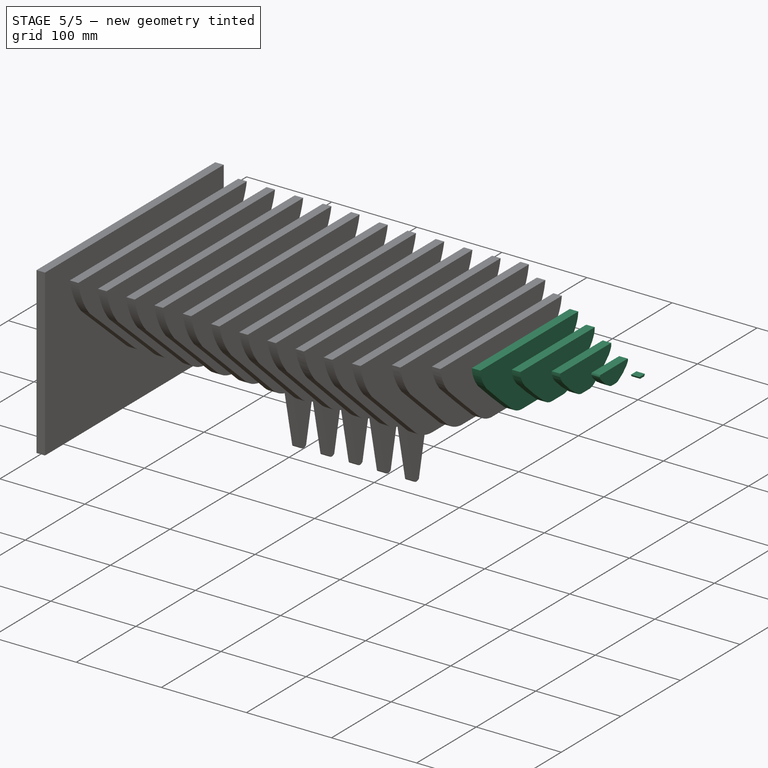
[diagram: stage 5 of 5 — iso view after this stage's code; geometry added in this stage tinted green]
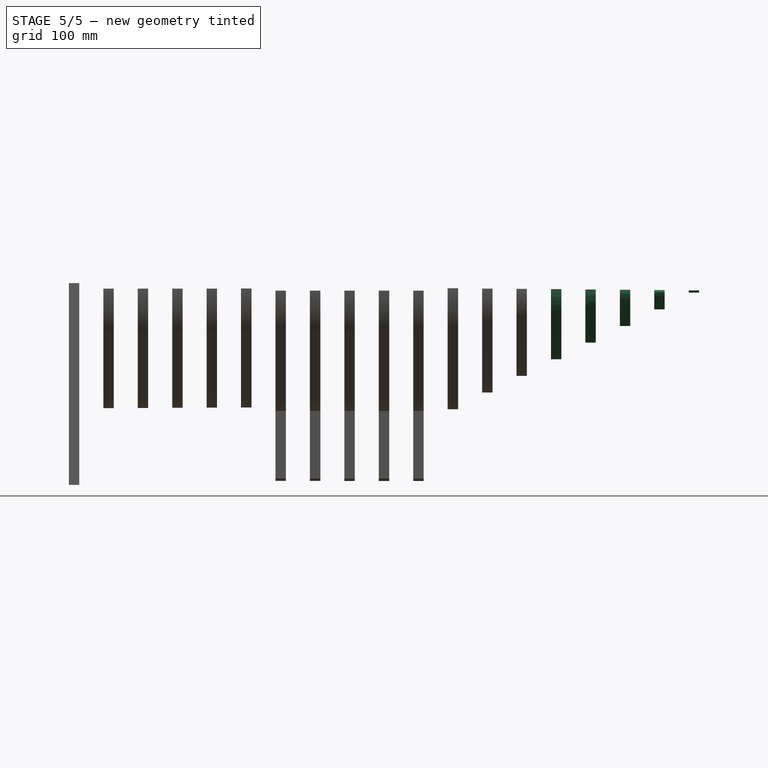
[diagram: stage 5 of 5 — front view after this stage's code; geometry added in this stage tinted green]
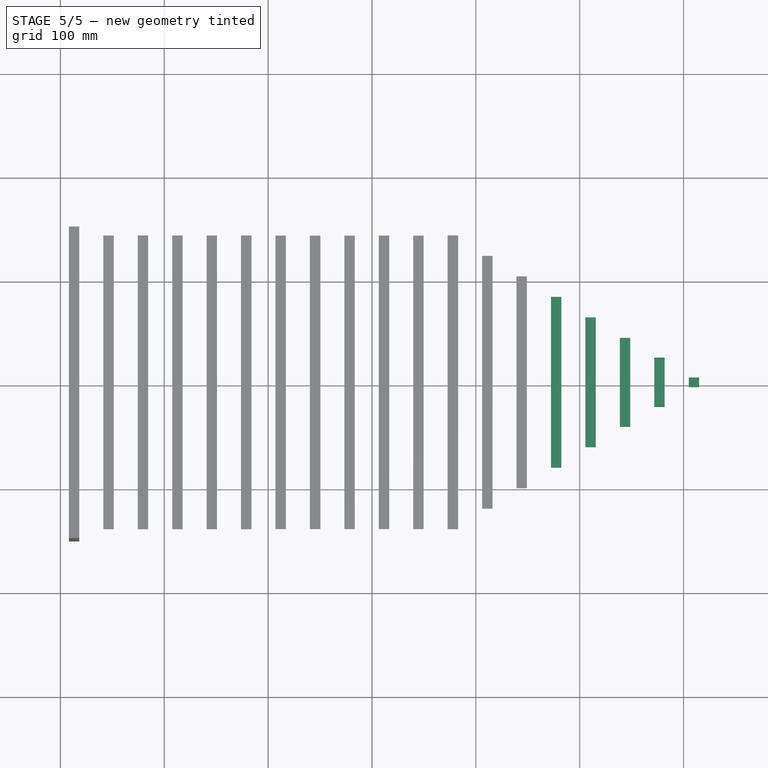
[diagram: stage 5 of 5 — top view after this stage's code; geometry added in this stage tinted green]
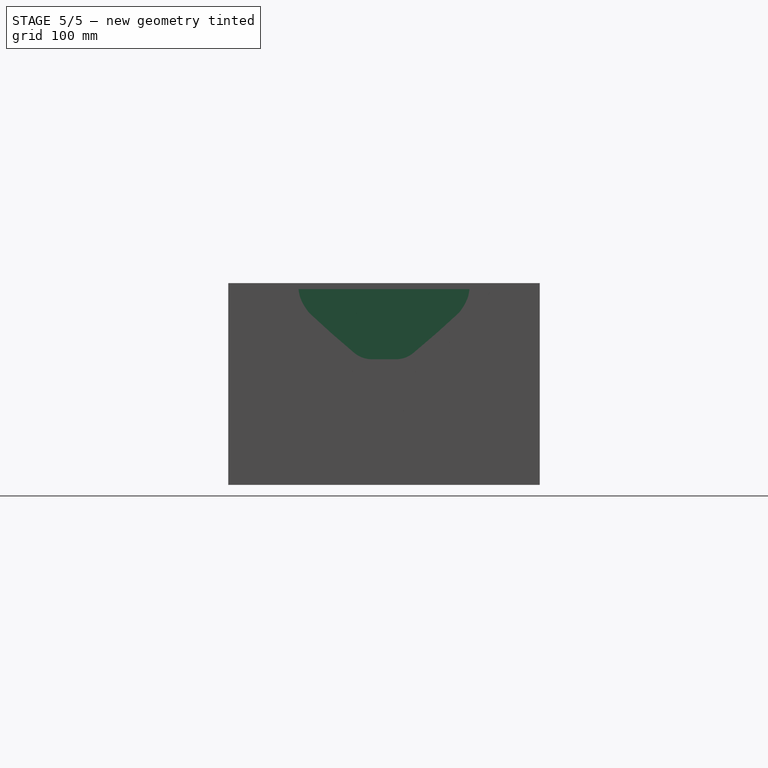
[diagram: stage 5 of 5 — right view after this stage's code; geometry added in this stage tinted green]
FEATURE [App::DocumentObjectGroup] Group  label="Lofts"
  Group = -> [Loft,Loft001,Loft002,Loft003]
FEATURE [Part::FeaturePython] Slice  # WARN: FeaturePython — macro-defined, semantics opaque (R4)
  Base = -> Extrude001
  Mode = 1
  Tolerance = 0
  Tools = -> [Group]
FEATURE [Part::FeaturePython] Slice_child0  label="Slice.0"  # WARN: FeaturePython — macro-defined, semantics opaque (R4)
  Base = -> Slice
  FilterType = 1
  Invert = false
  OverrideMaxVal = 0
  WindowFrom = 80
  WindowTo = 100
  items = 0
FEATURE [Part::FeaturePython] Slice_child1  label="Slice.1"  # WARN: FeaturePython — macro-defined, semantics opaque (R4)
  Base = -> Slice
  FilterType = 1
  Invert = false
  OverrideMaxVal = 0
  WindowFrom = 80
  WindowTo = 100
  items = 1
FEATURE [Part::FeaturePython] Slice_child2  label="Slice.2"  # WARN: FeaturePython — macro-defined, semantics opaque (R4)
  Base = -> Slice
  FilterType = 1
  Invert = false
  OverrideMaxVal = 0
  WindowFrom = 80
  WindowTo = 100
  items = 2
FEATURE [Part::FeaturePython] Slice_child3  label="Slice.3"  # WARN: FeaturePython — macro-defined, semantics opaque (R4)
  Base = -> Slice
  FilterType = 1
  Invert = false
  OverrideMaxVal = 0
  WindowFrom = 80
  WindowTo = 100
  items = 3
FEATURE [Part::FeaturePython] Slice_child4  label="Slice.4"  # WARN: FeaturePython — macro-defined, semantics opaque (R4)
  Base = -> Slice
  FilterType = 1
  Invert = false
  OverrideMaxVal = 0
  WindowFrom = 80
  WindowTo = 100
  items = 4
FEATURE [Part::FeaturePython] Slice_child5  label="Slice.5"  # WARN: FeaturePython — macro-defined, semantics opaque (R4)
  Base = -> Slice
  FilterType = 1
  Invert = false
  OverrideMaxVal = 0
  WindowFrom = 80
  WindowTo = 100
  items = 5
FEATURE [Part::FeaturePython] Slice_child6  label="Slice.6"  # WARN: FeaturePython — macro-defined, semantics opaque (R4)
  Base = -> Slice
  FilterType = 1
  Invert = false
  OverrideMaxVal = 0
  WindowFrom = 80
  WindowTo = 100
  items = 6
FEATURE [Part::FeaturePython] Slice_child7  label="Slice.7"  # WARN: FeaturePython — macro-defined, semantics opaque (R4)
  Base = -> Slice
  FilterType = 1
  Invert = false
  OverrideMaxVal = 0
  WindowFrom = 80
  WindowTo = 100
  items = 7
FEATURE [Part::FeaturePython] Slice_child8  label="Slice.8"  # WARN: FeaturePython — macro-defined, semantics opaque (R4)
  Base = -> Slice
  FilterType = 1
  Invert = false
  OverrideMaxVal = 0
  WindowFrom = 80
  WindowTo = 100
  items = 8
FEATURE [Part::FeaturePython] Slice_child9  label="Slice.9"  # WARN: FeaturePython — macro-defined, semantics opaque (R4)
  Base = -> Slice
  FilterType = 1
  Invert = false
  OverrideMaxVal = 0
  WindowFrom = 80
  WindowTo = 100
  items = 9
FEATURE [Part::FeaturePython] Slice_child10  label="Slice.10"  # WARN: FeaturePython — macro-defined, semantics opaque (R4)
  Base = -> Slice
  FilterType = 1
  Invert = false
  OverrideMaxVal = 0
  WindowFrom = 80
  WindowTo = 100
  items = 10
FEATURE [Part::FeaturePython] Slice_child11  label="Slice.11"  # WARN: FeaturePython — macro-defined, semantics opaque (R4)
  Base = -> Slice
  FilterType = 1
  Invert = false
  OverrideMaxVal = 0
  WindowFrom = 80
  WindowTo = 100
  items = 11
FEATURE [Part::FeaturePython] Slice_child12  label="Slice.12"  # WARN: FeaturePython — macro-defined, semantics opaque (R4)
  Base = -> Slice
  FilterType = 1
  Invert = false
  OverrideMaxVal = 0
  WindowFrom = 80
  WindowTo = 100
  items = 12
FEATURE [Part::FeaturePython] Slice_child13  label="Slice.13"  # WARN: FeaturePython — macro-defined, semantics opaque (R4)
  Base = -> Slice
  FilterType = 1
  Invert = false
  OverrideMaxVal = 0
  WindowFrom = 80
  WindowTo = 100
  items = 13
FEATURE [Part::FeaturePython] Slice_child14  label="Slice.14"  # WARN: FeaturePython — macro-defined, semantics opaque (R4)
  Base = -> Slice
  FilterType = 1
  Invert = false
  OverrideMaxVal = 0
  WindowFrom = 80
  WindowTo = 100
  items = 14
FEATURE [Part::FeaturePython] Slice_child15  label="Slice.15"  # WARN: FeaturePython — macro-defined, semantics opaque (R4)
  Base = -> Slice
  FilterType = 1
  Invert = false
  OverrideMaxVal = 0
  WindowFrom = 80
  WindowTo = 100
  items = 15
FEATURE [Part::FeaturePython] Slice_child16  label="Slice.16"  # WARN: FeaturePython — macro-defined, semantics opaque (R4)
  Base = -> Slice
  FilterType = 1
  Invert = false
  OverrideMaxVal = 0
  WindowFrom = 80
  WindowTo = 100
  items = 16
FEATURE [Part::FeaturePython] Slice_child17  label="Slice.17"  # WARN: FeaturePython — macro-defined, semantics opaque (R4)
  Base = -> Slice
  FilterType = 1
  Invert = false
  OverrideMaxVal = 0
  WindowFrom = 80
  WindowTo = 100
  items = 17
FEATURE [Part::FeaturePython] Slice_child18  label="Slice.18"  # WARN: FeaturePython — macro-defined, semantics opaque (R4)
  Base = -> Slice
  FilterType = 1
  Invert = false
  OverrideMaxVal = 0
  WindowFrom = 80
  WindowTo = 100
  items = 18
FEATURE [Part::FeaturePython] Slice_child19  label="Slice.19"  # WARN: FeaturePython — macro-defined, semantics opaque (R4)
  Base = -> Slice
  FilterType = 1
  Invert = false
  OverrideMaxVal = 0
  WindowFrom = 80
  WindowTo = 100
  items = 19
FEATURE [Part::FeaturePython] Slice_child20  label="Slice.20"  # WARN: FeaturePython — macro-defined, semantics opaque (R4)
  Base = -> Slice
  FilterType = 1
  Invert = false
  OverrideMaxVal = 0
  WindowFrom = 80
  WindowTo = 100
  items = 20
FEATURE [Part::FeaturePython] Slice_child21  label="Slice.21"  # WARN: FeaturePython — macro-defined, semantics opaque (R4)
  Base = -> Slice
  FilterType = 1
  Invert = false
  OverrideMaxVal = 0
  WindowFrom = 80
  WindowTo = 100
  items = 21
FEATURE [Part::FeaturePython] Slice_child22  label="Slice.22"  # WARN: FeaturePython — macro-defined, semantics opaque (R4)
  Base = -> Slice
  FilterType = 1
  Invert = false
  OverrideMaxVal = 0
  WindowFrom = 80
  WindowTo = 100
  items = 22
FEATURE [Part::FeaturePython] Slice_child23  label="Slice.23"  # WARN: FeaturePython — macro-defined, semantics opaque (R4)
  Base = -> Slice
  FilterType = 1
  Invert = false
  OverrideMaxVal = 0
  WindowFrom = 80
  WindowTo = 100
  items = 23
FEATURE [Part::FeaturePython] Slice_child24  label="Slice.24"  # WARN: FeaturePython — macro-defined, semantics opaque (R4)
  Base = -> Slice
  FilterType = 1
  Invert = false
  OverrideMaxVal = 0
  WindowFrom = 80
  WindowTo = 100
  items = 24
FEATURE [Part::FeaturePython] Slice_child25  label="Slice.25"  # WARN: FeaturePython — macro-defined, semantics opaque (R4)
  Base = -> Slice
  FilterType = 1
  Invert = false
  OverrideMaxVal = 0
  WindowFrom = 80
  WindowTo = 100
  items = 25
FEATURE [Part::FeaturePython] Slice_child26  label="Slice.26"  # WARN: FeaturePython — macro-defined, semantics opaque (R4)
  Base = -> Slice
  FilterType = 1
  Invert = false
  OverrideMaxVal = 0
  WindowFrom = 80
  WindowTo = 100
  items = 26
FEATURE [Part::FeaturePython] Slice_child27  label="Slice.27"  # WARN: FeaturePython — macro-defined, semantics opaque (R4)
  Base = -> Slice
  FilterType = 1
  Invert = false
  OverrideMaxVal = 0
  WindowFrom = 80
  WindowTo = 100
  items = 27
FEATURE [Part::FeaturePython] Slice_child28  label="Slice.28"  # WARN: FeaturePython — macro-defined, semantics opaque (R4)
  Base = -> Slice
  FilterType = 1
  Invert = false
  OverrideMaxVal = 0
  WindowFrom = 80
  WindowTo = 100
  items = 28
FEATURE [Part::FeaturePython] Slice_child29  label="Slice.29"  # WARN: FeaturePython — macro-defined, semantics opaque (R4)
  Base = -> Slice
  FilterType = 1
  Invert = false
  OverrideMaxVal = 0
  WindowFrom = 80
  WindowTo = 100
  items = 29
FEATURE [Part::FeaturePython] Slice_child30  label="Slice.30"  # WARN: FeaturePython — macro-defined, semantics opaque (R4)
  Base = -> Slice
  FilterType = 1
  Invert = false
  OverrideMaxVal = 0
  WindowFrom = 80
  WindowTo = 100
  items = 30
FEATURE [Part::FeaturePython] Slice_child31  label="Slice.31"  # WARN: FeaturePython — macro-defined, semantics opaque (R4)
  Base = -> Slice
  FilterType = 1
  Invert = false
  OverrideMaxVal = 0
  WindowFrom = 80
  WindowTo = 100
  items = 31
FEATURE [Part::FeaturePython] Slice_child32  label="Slice.32"  # WARN: FeaturePython — macro-defined, semantics opaque (R4)
  Base = -> Slice
  FilterType = 1
  Invert = false
  OverrideMaxVal = 0
  WindowFrom = 80
  WindowTo = 100
  items = 32
FEATURE [Part::FeaturePython] Slice_child33  label="Slice.33"  # WARN: FeaturePython — macro-defined, semantics opaque (R4)
  Base = -> Slice
  FilterType = 1
  Invert = false
  OverrideMaxVal = 0
  WindowFrom = 80
  WindowTo = 100
  items = 33
FEATURE [Part::FeaturePython] Slice_child34  label="Slice.34"  # WARN: FeaturePython — macro-defined, semantics opaque (R4)
  Base = -> Slice
  FilterType = 1
  Invert = false
  OverrideMaxVal = 0
  WindowFrom = 80
  WindowTo = 100
  items = 34
FEATURE [Part::FeaturePython] Slice_child35  label="Slice.35"  # WARN: FeaturePython — macro-defined, semantics opaque (R4)
  Base = -> Slice
  FilterType = 1
  Invert = false
  OverrideMaxVal = 0
  WindowFrom = 80
  WindowTo = 100
  items = 35
FEATURE [Part::FeaturePython] Slice_child36  label="Slice.36"  # WARN: FeaturePython — macro-defined, semantics opaque (R4)
  Base = -> Slice
  FilterType = 1
  Invert = false
  OverrideMaxVal = 0
  WindowFrom = 80
  WindowTo = 100
  items = 36
FEATURE [Part::FeaturePython] Slice_child37  label="Slice.37"  # WARN: FeaturePython — macro-defined, semantics opaque (R4)
  Base = -> Slice
  FilterType = 1
  Invert = false
  OverrideMaxVal = 0
  WindowFrom = 80
  WindowTo = 100
  items = 37
FEATURE [Part::FeaturePython] Slice_child38  label="Slice.38"  # WARN: FeaturePython — macro-defined, semantics opaque (R4)
  Base = -> Slice
  FilterType = 1
  Invert = false
  OverrideMaxVal = 0
  WindowFrom = 80
  WindowTo = 100
  items = 38
FEATURE [Part::FeaturePython] Slice_child39  label="Slice.39"  # WARN: FeaturePython — macro-defined, semantics opaque (R4)
  Base = -> Slice
  FilterType = 1
  Invert = false
  OverrideMaxVal = 0
  WindowFrom = 80
  WindowTo = 100
  items = 39
FEATURE [App::DocumentObjectGroup] GrExplode_Slice  label="Exploded Slice"
  Group = -> [Slice_child0,Slice_child1,Slice_child2,Slice_child3,Slice_child4,Slice_child5,Slice_child6,Slice_child7,Slice_child8,Slice_child9,Slice_child10,Slice_child11,Slice_child12,Slice_child13,Slice_child14,Slice_child15,Slice_child16,Slice_child17,Slice_child18,Slice_child19,Slice_child20,Slice_child21,Slice_child22,Slice_child23,Slice_child24,Slice_child25,Slice_child26,Slice_child27,Slice_child28,+11 more]
FEATURE [Part::Extrusion] Extrude
  Base = -> Slice_child1
  Dir = (1,0,0)
  DirMode = 0
  FaceMakerClass = Part::FaceMakerBullseye
  LengthFwd = 10
  LengthRev = 0
  Solid = false
  Symmetric = true
FEATURE [Part::Extrusion] Extrude002
  Base = -> Slice_child3
  Dir = (1,0,0)
  DirMode = 0
  FaceMakerClass = Part::FaceMakerBullseye
  LengthFwd = 10
  LengthRev = 0
  Solid = false
  Symmetric = true
FEATURE [Part::Extrusion] Extrude003
  Base = -> Slice_child5
  Dir = (1,0,0)
  DirMode = 0
  FaceMakerClass = Part::FaceMakerBullseye
  LengthFwd = 10
  LengthRev = 0
  Solid = false
  Symmetric = true
FEATURE [Part::Extrusion] Extrude004
  Base = -> Slice_child7
  Dir = (1,0,0)
  DirMode = 0
  FaceMakerClass = Part::FaceMakerBullseye
  LengthFwd = 10
  LengthRev = 0
  Solid = false
  Symmetric = true
FEATURE [Part::Extrusion] Extrude005
  Base = -> Slice_child9
  Dir = (1,0,0)
  DirMode = 0
  FaceMakerClass = Part::FaceMakerBullseye
  LengthFwd = 10
  LengthRev = 0
  Solid = false
  Symmetric = true
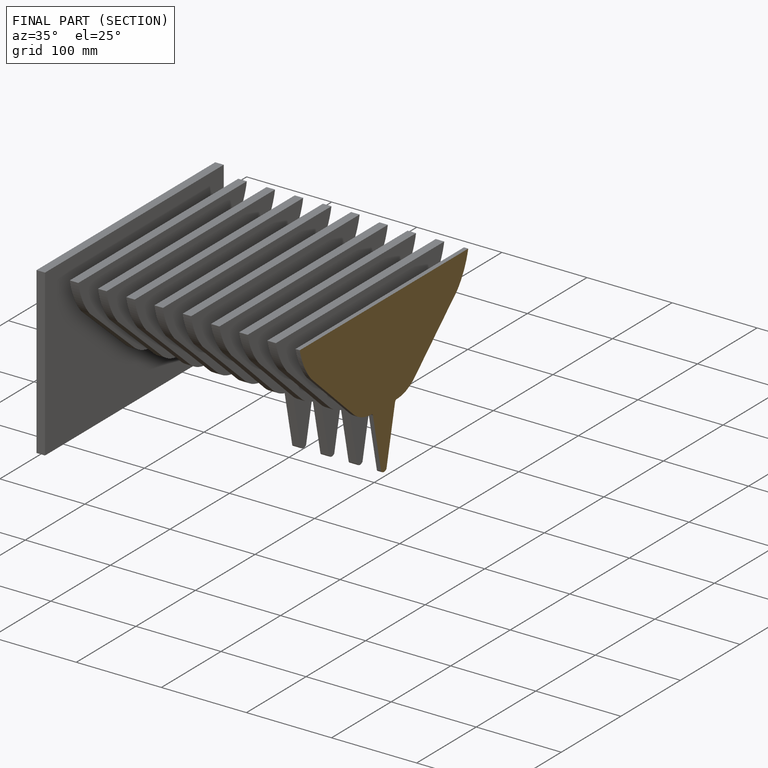
[diagram: finished part — half-section view (interior)]
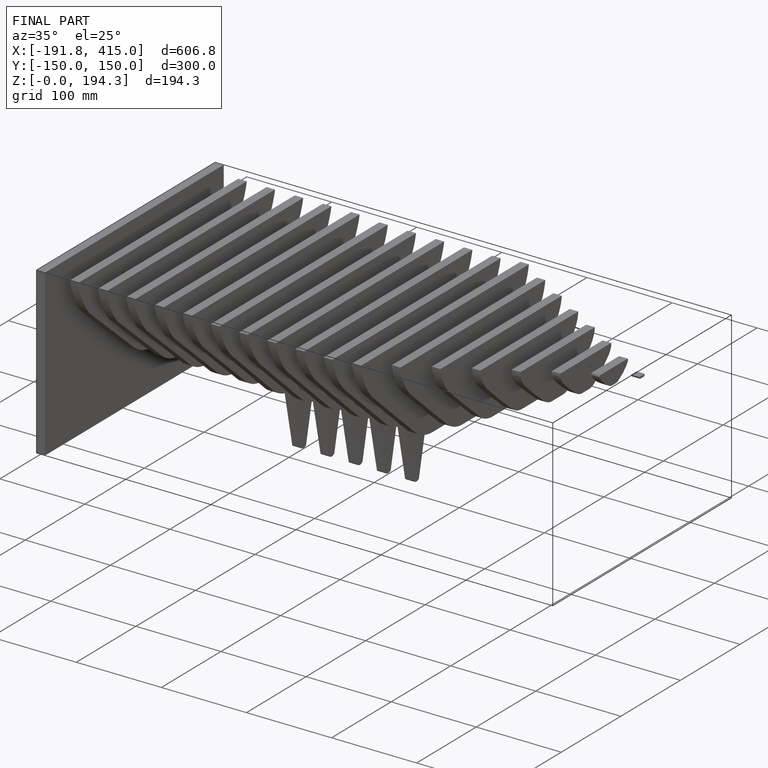
[diagram: finished part — iso view with bounding-box wireframe]
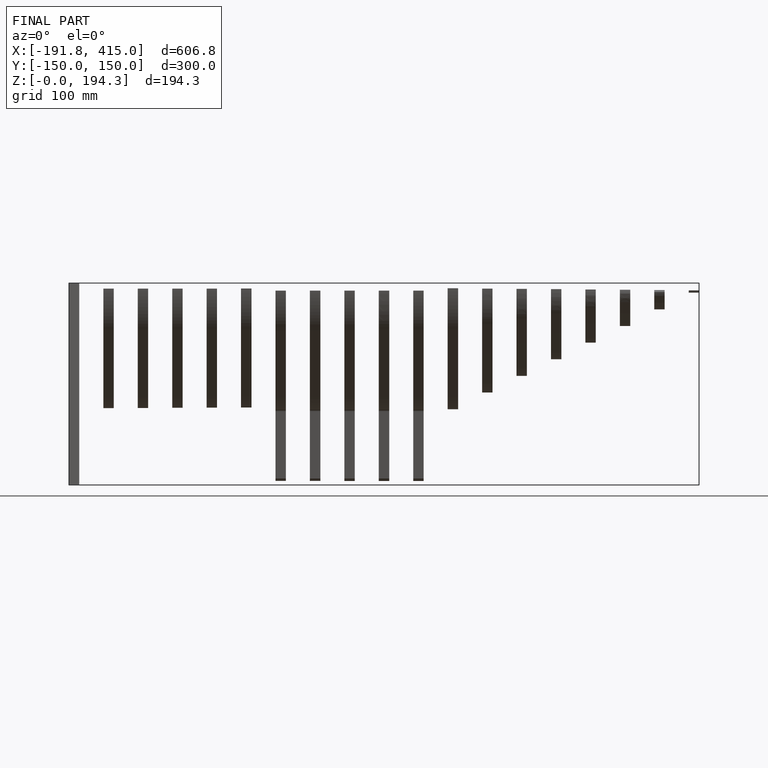
[diagram: finished part — front view with bounding-box wireframe]
